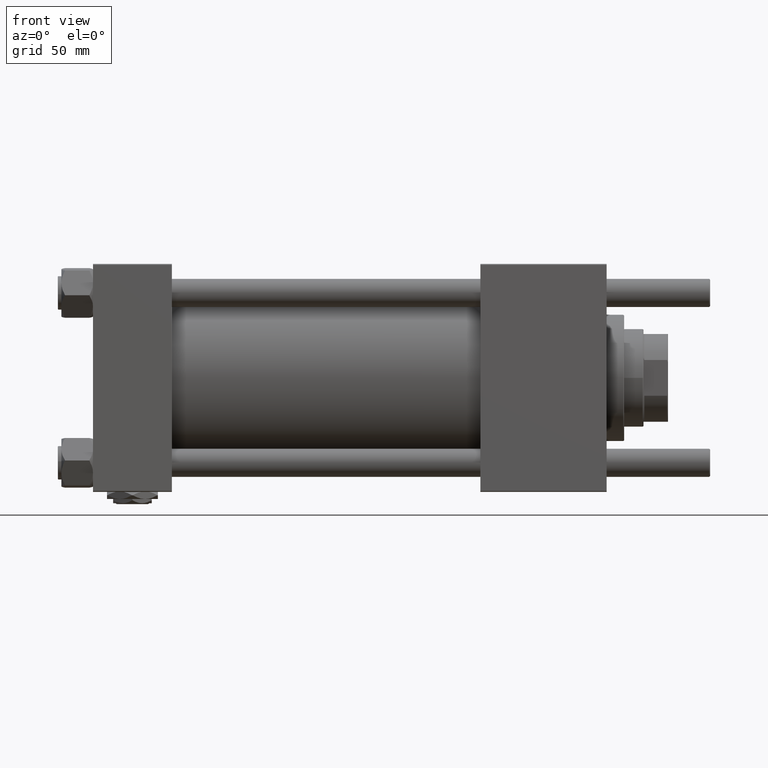
[diagram: clean part render]
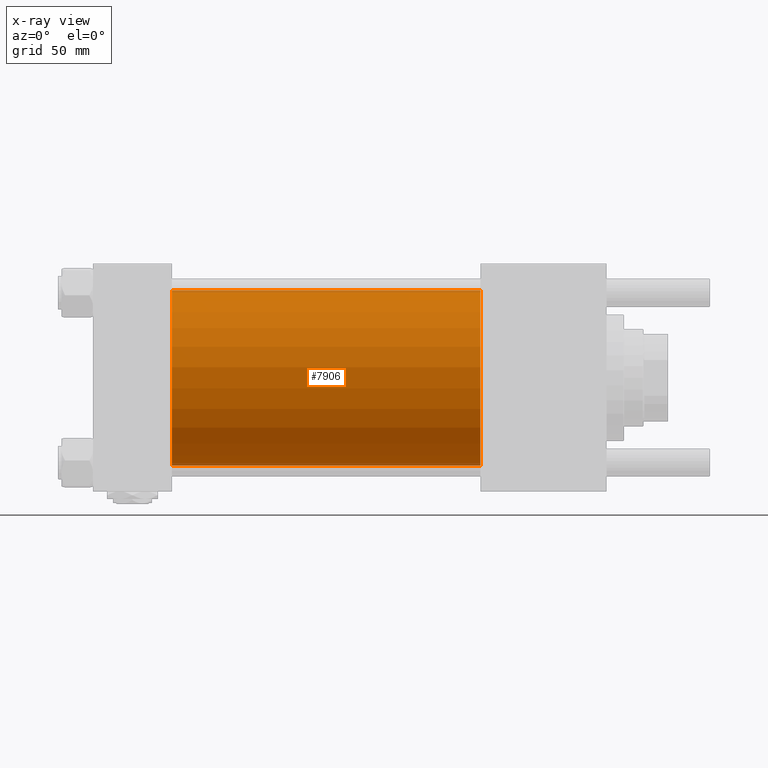
[diagram: x-ray — body ghosted, one internal face saturated and labeled with its STEP entity id]
A machine part, front view, then the same camera in x-ray: the body is ghosted and one INTERNAL B-rep face — a face not visible from any outside direction — is saturated and labeled: STEP entity #7906.
In plain terms, the highlighted cylindrical surface (partial cylindrical patch) has radius 50 mm, axis along (-1, -0, -0).
Its self-contained STEP definition (entity closure, byte-faithful):
#1631 = VECTOR ( 'NONE', #16711, 1000.000000000000000 ) ;
#4347 = FACE_OUTER_BOUND ( 'NONE', #5205, .T. ) ;
#5050 = CARTESIAN_POINT ( 'NONE',  ( 45.00000000000000000, 3.521148781771555838E-15, -50.00000000000000000 ) ) ;
#5205 = EDGE_LOOP ( 'NONE', ( #33992, #51634, #54805, #47697 ) ) ;
#6483 = VERTEX_POINT ( 'NONE', #44323 ) ;
#7770 = LINE ( 'NONE', #57438, #1631 ) ;
#7906 = ADVANCED_FACE ( 'NONE', ( #4347 ), #45606, .F. ) ;
#9719 = CARTESIAN_POINT ( 'NONE',  ( 220.9999999999999716, -2.602085213965210642E-15, 0.000000000000000000 ) ) ;
#12328 = CIRCLE ( 'NONE', #19836, 50.00000000000000000 ) ;
#14281 = CARTESIAN_POINT ( 'NONE',  ( 220.9999999999999716, -2.602085213965210642E-15, 0.000000000000000000 ) ) ;
#16682 = VECTOR ( 'NONE', #46390, 1000.000000000000000 ) ;
#16711 = DIRECTION ( 'NONE',  ( -1.000000000000000000, -0.000000000000000000, -0.000000000000000000 ) ) ;
#19836 = AXIS2_PLACEMENT_3D ( 'NONE', #14281, #22333, #22934 ) ;
#20031 = LINE ( 'NONE', #33202, #16682 ) ;
#21125 = AXIS2_PLACEMENT_3D ( 'NONE', #9719, #50389, #22559 ) ;
#22098 = CARTESIAN_POINT ( 'NONE',  ( 220.9999999999999716, -2.602085213965210642E-15, 50.00000000000000000 ) ) ;
#22333 = DIRECTION ( 'NONE',  ( 1.000000000000000000, 0.000000000000000000, 0.000000000000000000 ) ) ;
#22559 = DIRECTION ( 'NONE',  ( 0.000000000000000000, 0.000000000000000000, 1.000000000000000000 ) ) ;
#22702 = DIRECTION ( 'NONE',  ( 0.000000000000000000, 0.000000000000000000, -1.000000000000000000 ) ) ;
#22934 = DIRECTION ( 'NONE',  ( 0.000000000000000000, 0.000000000000000000, -1.000000000000000000 ) ) ;
#23773 = EDGE_CURVE ( 'NONE', #6483, #54266, #20031, .T. ) ;
#28362 = CARTESIAN_POINT ( 'NONE',  ( 45.00000000000000000, -2.602085213965210642E-15, 0.000000000000000000 ) ) ;
#30387 = VERTEX_POINT ( 'NONE', #22098 ) ;
#31971 = DIRECTION ( 'NONE',  ( 1.000000000000000000, 0.000000000000000000, 0.000000000000000000 ) ) ;
#33202 = CARTESIAN_POINT ( 'NONE',  ( 220.9999999999999716, 3.521148781771555838E-15, -50.00000000000000000 ) ) ;
#33992 = ORIENTED_EDGE ( 'NONE', *, *, #40948, .T. ) ;
#35174 = CIRCLE ( 'NONE', #42876, 50.00000000000000000 ) ;
#39461 = EDGE_CURVE ( 'NONE', #40642, #54266, #35174, .T. ) ;
#40642 = VERTEX_POINT ( 'NONE', #44737 ) ;
#40948 = EDGE_CURVE ( 'NONE', #30387, #6483, #12328, .T. ) ;
#42876 = AXIS2_PLACEMENT_3D ( 'NONE', #28362, #31971, #22702 ) ;
#44323 = CARTESIAN_POINT ( 'NONE',  ( 220.9999999999999716, 3.521148781771555838E-15, -50.00000000000000000 ) ) ;
#44737 = CARTESIAN_POINT ( 'NONE',  ( 45.00000000000000000, -2.602085213965210642E-15, 50.00000000000000000 ) ) ;
#45606 = CYLINDRICAL_SURFACE ( 'NONE', #21125, 50.00000000000000000 ) ;
#46390 = DIRECTION ( 'NONE',  ( -1.000000000000000000, -0.000000000000000000, -0.000000000000000000 ) ) ;
#47697 = ORIENTED_EDGE ( 'NONE', *, *, #54525, .F. ) ;
#50389 = DIRECTION ( 'NONE',  ( -1.000000000000000000, -0.000000000000000000, -0.000000000000000000 ) ) ;
#51634 = ORIENTED_EDGE ( 'NONE', *, *, #23773, .T. ) ;
#54266 = VERTEX_POINT ( 'NONE', #5050 ) ;
#54525 = EDGE_CURVE ( 'NONE', #30387, #40642, #7770, .T. ) ;
#54805 = ORIENTED_EDGE ( 'NONE', *, *, #39461, .F. ) ;
#57438 = CARTESIAN_POINT ( 'NONE',  ( 220.9999999999999716, -2.602085213965210642E-15, 50.00000000000000000 ) ) ;